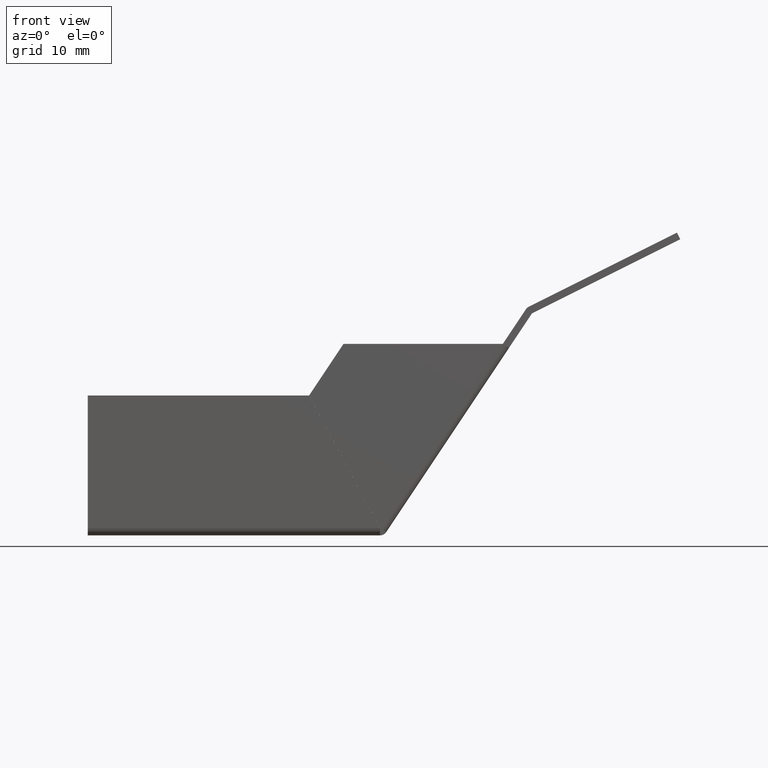
[diagram: clean part render]
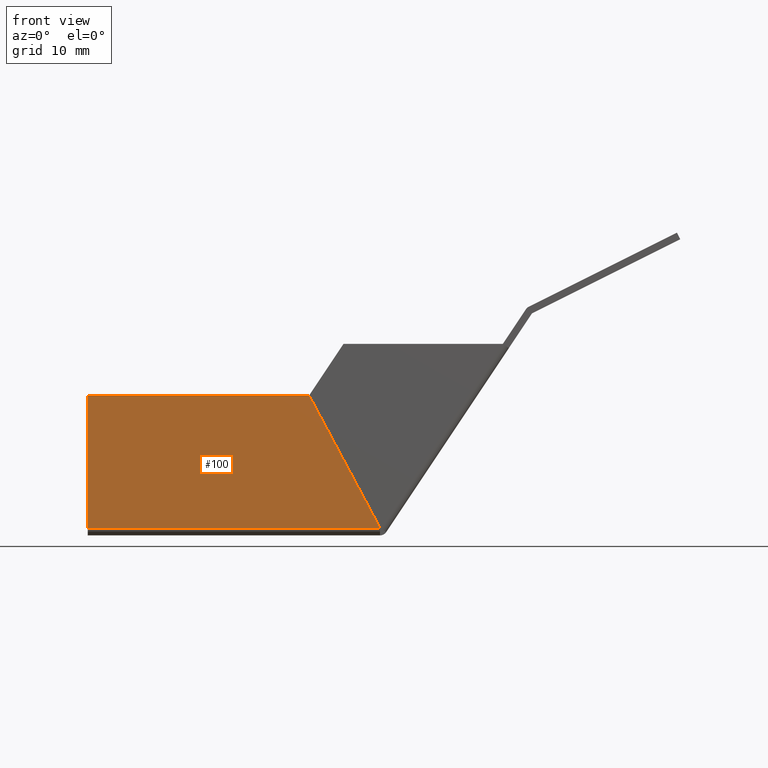
[diagram: same view with one face highlighted and labeled with its STEP entity id]
A machine part, front view. The second image highlights one B-rep face of the part: STEP entity #100.
In plain terms, the highlighted planar face has unit normal (0, 1, 0).
Its self-contained STEP definition (entity closure, byte-faithful):
#100 = ADVANCED_FACE( '', ( #215 ), #216, .F. );
#215 = FACE_OUTER_BOUND( '', #361, .T. );
#216 = PLANE( '', #362 );
#361 = EDGE_LOOP( '', ( #588, #589, #590, #591 ) );
#362 = AXIS2_PLACEMENT_3D( '', #592, #593, #594 );
#588 = ORIENTED_EDGE( '', *, *, #811, .T. );
#589 = ORIENTED_EDGE( '', *, *, #839, .T. );
#590 = ORIENTED_EDGE( '', *, *, #840, .F. );
#591 = ORIENTED_EDGE( '', *, *, #832, .F. );
#592 = CARTESIAN_POINT( '', ( 0.000000000000000, -41.0000000000000, 1.00000000000000 ) );
#593 = DIRECTION( '', ( 0.000000000000000, 1.00000000000000, 0.000000000000000 ) );
#594 = DIRECTION( '', ( 0.000000000000000, 0.000000000000000, 1.00000000000000 ) );
#811 = EDGE_CURVE( '', #958, #962, #964, .T. );
#832 = EDGE_CURVE( '', #958, #991, #992, .T. );
#839 = EDGE_CURVE( '', #962, #999, #1000, .T. );
#840 = EDGE_CURVE( '', #991, #999, #1001, .T. );
#958 = VERTEX_POINT( '', #1163 );
#962 = VERTEX_POINT( '', #1168 );
#964 = LINE( '', #1179, #1180 );
#991 = VERTEX_POINT( '', #1217 );
#992 = LINE( '', #1218, #1219 );
#999 = VERTEX_POINT( '', #1229 );
#1000 = LINE( '', #1230, #1231 );
#1001 = LINE( '', #1232, #1233 );
#1163 = CARTESIAN_POINT( '', ( 6.12586211025963E-017, -41.0000000000000, 1.00200000000062 ) );
#1168 = CARTESIAN_POINT( '', ( 39.4626755064781, -41.0000000000000, 1.00200000000062 ) );
#1179 = CARTESIAN_POINT( '', ( 0.000000000000000, -41.0000000000000, 1.00200000000000 ) );
#1180 = VECTOR( '', #1353, 1000.00000000000 );
#1217 = CARTESIAN_POINT( '', ( 0.000000000000000, -41.0000000000000, 18.8947968681439 ) );
#1218 = CARTESIAN_POINT( '', ( 0.000000000000000, -41.0000000000000, 1.00000000000000 ) );
#1219 = VECTOR( '', #1373, 1000.00000000000 );
#1229 = CARTESIAN_POINT( '', ( 29.8867412287385, -41.0000000000000, 18.8947968681439 ) );
#1230 = CARTESIAN_POINT( '', ( 30.6771467270640, -41.0000000000000, 17.4179106850506 ) );
#1231 = VECTOR( '', #1380, 1000.00000000000 );
#1232 = CARTESIAN_POINT( '', ( 0.000000000000000, -41.0000000000000, 18.8947968681439 ) );
#1233 = VECTOR( '', #1381, 1000.00000000000 );
#1353 = DIRECTION( '', ( 1.00000000000000, 0.000000000000000, 0.000000000000000 ) );
#1373 = DIRECTION( '', ( 0.000000000000000, 0.000000000000000, 1.00000000000000 ) );
#1380 = DIRECTION( '', ( -0.471857925531415, 0.000000000000000, 0.881674598768270 ) );
#1381 = DIRECTION( '', ( 1.00000000000000, 0.000000000000000, 0.000000000000000 ) );